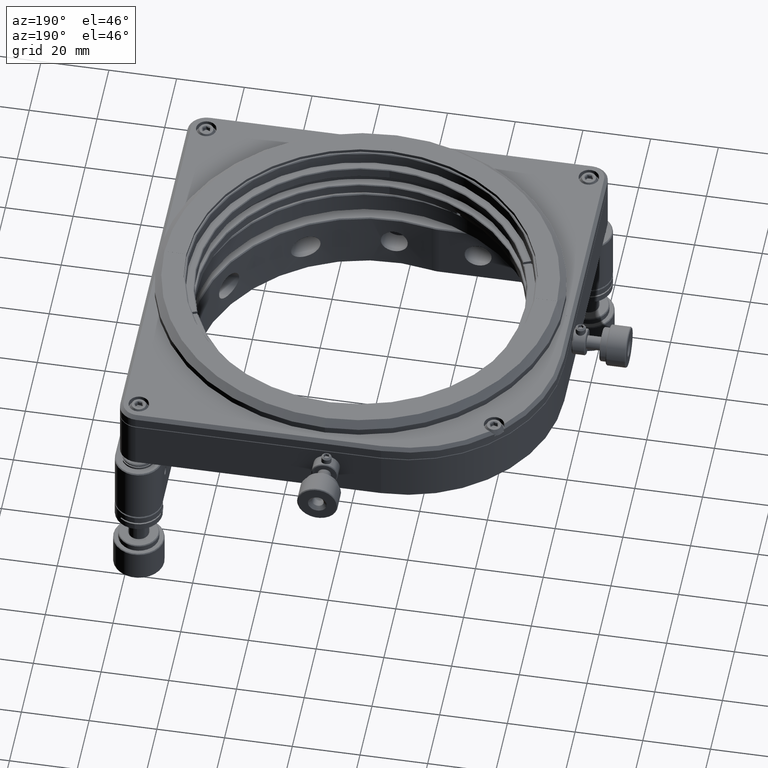
[diagram: clean part render]
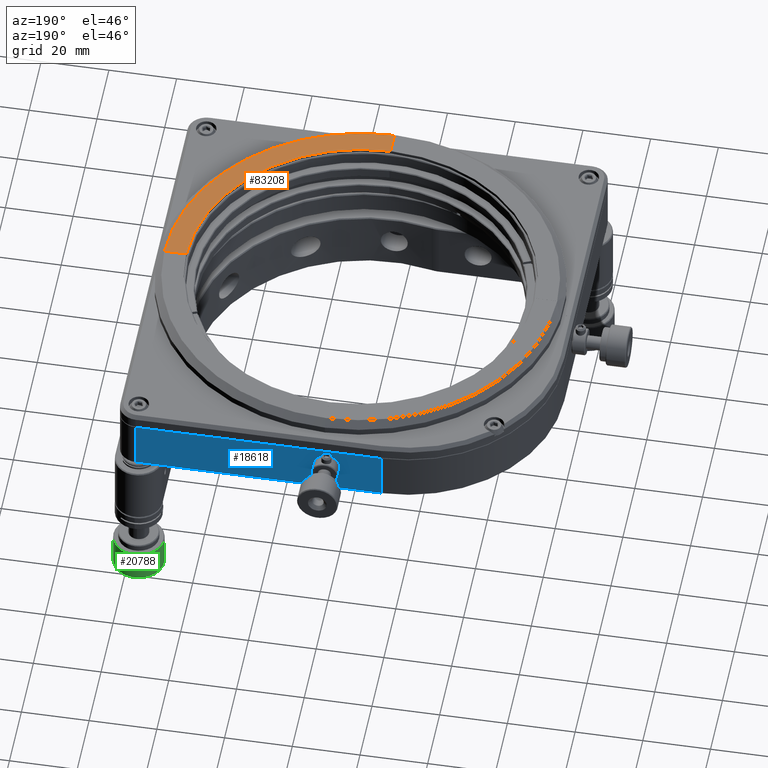
[diagram: same view with three faces highlighted in distinct colors, each labeled with its STEP entity id]
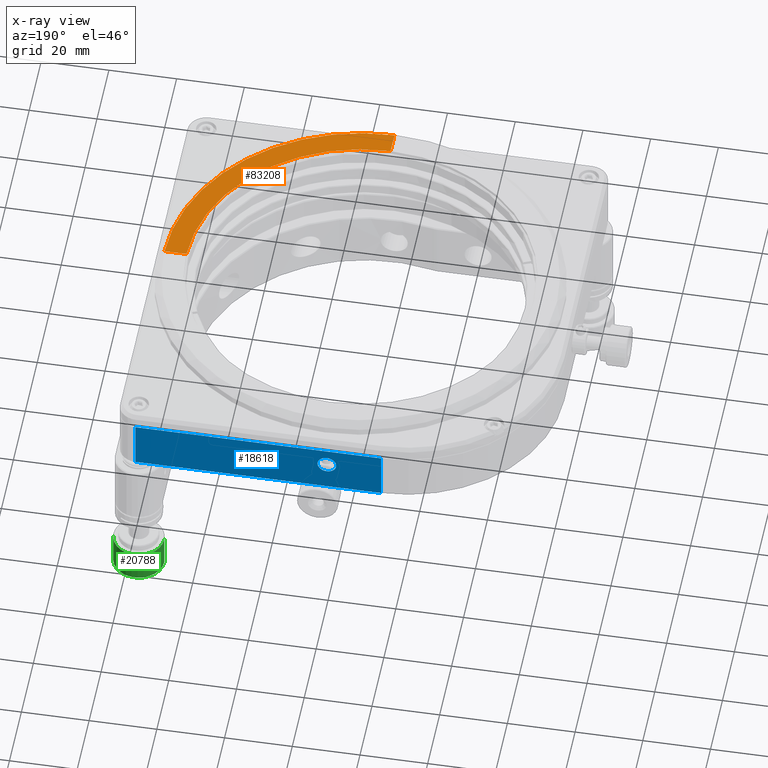
[diagram: x-ray of the same camera — body ghosted, the three highlighted faces saturated]
A machine part, auxiliary view with three faces highlighted in distinct colors.
The next image is the same camera in x-ray (body ghosted, the three faces saturated) — at least one of them is partly hidden behind the body in this view.
Their STEP definitions:

[orange] entity #83208 — the highlighted planar face has unit normal (-0, 0, 1).
#6471 = CIRCLE ( 'NONE', #28515, 57.99999999999989342 ) ;
#6886 = DIRECTION ( 'NONE',  ( -1.000000000000000000, -1.148980765197839126E-32, -4.783160795294948495E-17 ) ) ;
#13240 = AXIS2_PLACEMENT_3D ( 'NONE', #48864, #93387, #140171 ) ;
#16653 = PLANE ( 'NONE',  #132088 ) ;
#19648 = DIRECTION ( 'NONE',  ( -4.783160795294948495E-17, 2.402137026896643349E-16, 1.000000000000000000 ) ) ;
#20599 = VERTEX_POINT ( 'NONE', #143427 ) ;
#27488 = EDGE_CURVE ( 'NONE', #91242, #51318, #92363, .T. ) ;
#27859 = DIRECTION ( 'NONE',  ( 0.000000000000000000, 1.000000000000000000, -2.392722035830082916E-16 ) ) ;
#28515 = AXIS2_PLACEMENT_3D ( 'NONE', #107712, #144478, #27859 ) ;
#29666 = FACE_OUTER_BOUND ( 'NONE', #91139, .T. ) ;
#35536 = EDGE_CURVE ( 'NONE', #20599, #141187, #138830, .T. ) ;
#47629 = CARTESIAN_POINT ( 'NONE',  ( 52.71106363106245851, -1.734867508748109355, 35.49999999999997868 ) ) ;
#48864 = CARTESIAN_POINT ( 'NONE',  ( 1.211670430753839289, -1.484867508748128007, 35.49999999999997868 ) ) ;
#51318 = VERTEX_POINT ( 'NONE', #71775 ) ;
#54311 = ORIENTED_EDGE ( 'NONE', *, *, #107971, .F. ) ;
#57009 = EDGE_CURVE ( 'NONE', #141187, #91242, #101363, .T. ) ;
#64975 = CARTESIAN_POINT ( 'NONE',  ( 1.211670430753839289, -1.484867508748128007, 35.49999999999997868 ) ) ;
#68820 = ORIENTED_EDGE ( 'NONE', *, *, #57009, .T. ) ;
#71775 = CARTESIAN_POINT ( 'NONE',  ( 1.461670430754042682, -59.48432871314198422, 35.49999999999999289 ) ) ;
#82393 = CARTESIAN_POINT ( 'NONE',  ( 1.461670430754030026, -1.484867508748128007, 35.49999999999997868 ) ) ;
#83208 = ADVANCED_FACE ( 'NONE', ( #29666 ), #16653, .T. ) ;
#87367 = CARTESIAN_POINT ( 'NONE',  ( 1.461670430754025807, -52.98426070905674834, 35.49999999999999289 ) ) ;
#89102 = VECTOR ( 'NONE', #151426, 1000.000000000000000 ) ;
#91139 = EDGE_LOOP ( 'NONE', ( #94780, #68820, #93009, #54311 ) ) ;
#91242 = VERTEX_POINT ( 'NONE', #87367 ) ;
#92363 = LINE ( 'NONE', #82393, #89102 ) ;
#93009 = ORIENTED_EDGE ( 'NONE', *, *, #27488, .T. ) ;
#93387 = DIRECTION ( 'NONE',  ( 4.783160795294948495E-17, -2.402137026896644828E-16, -1.000000000000000000 ) ) ;
#94780 = ORIENTED_EDGE ( 'NONE', *, *, #35536, .T. ) ;
#101363 = CIRCLE ( 'NONE', #13240, 51.49999999999994316 ) ;
#107712 = CARTESIAN_POINT ( 'NONE',  ( 1.211670430753839289, -1.484867508748130893, 35.49999999999997868 ) ) ;
#107971 = EDGE_CURVE ( 'NONE', #20599, #51318, #6471, .T. ) ;
#111769 = DIRECTION ( 'NONE',  ( 0.000000000000000000, -1.000000000000000000, 2.402137026896643349E-16 ) ) ;
#132088 = AXIS2_PLACEMENT_3D ( 'NONE', #64975, #19648, #111769 ) ;
#135787 = CARTESIAN_POINT ( 'NONE',  ( 1.211670430753839289, -1.734867508748112463, 35.49999999999997868 ) ) ;
#138830 = LINE ( 'NONE', #135787, #141789 ) ;
#140171 = DIRECTION ( 'NONE',  ( 0.000000000000000000, 1.000000000000000000, -2.694716079187275904E-16 ) ) ;
#141187 = VERTEX_POINT ( 'NONE', #47629 ) ;
#141789 = VECTOR ( 'NONE', #6886, 1000.000000000000000 ) ;
#143427 = CARTESIAN_POINT ( 'NONE',  ( 59.21113163514768729, -1.734867508748112463, 35.49999999999997868 ) ) ;
#144478 = DIRECTION ( 'NONE',  ( 5.782411586589364788E-17, -2.312964634635744436E-16, -1.000000000000000000 ) ) ;
#151426 = DIRECTION ( 'NONE',  ( 0.000000000000000000, -1.000000000000000000, 2.402137026896643349E-16 ) ) ;

[blue] entity #18618 — the highlighted planar face has unit normal (0, -1, -0).
#1034 = LINE ( 'NONE', #84688, #46372 ) ;
#3033 = VERTEX_POINT ( 'NONE', #38266 ) ;
#5101 = DIRECTION ( 'NONE',  ( -1.000000000000000000, -2.775557561562891351E-17, -0.000000000000000000 ) ) ;
#13057 = LINE ( 'NONE', #59852, #120192 ) ;
#15587 = DIRECTION ( 'NONE',  ( 3.760505654914396745E-17, 1.803624211640625410E-17, -1.000000000000000000 ) ) ;
#15810 = EDGE_CURVE ( 'NONE', #82692, #3033, #94532, .T. ) ;
#16829 = CARTESIAN_POINT ( 'NONE',  ( 2.749999999999046096, 61.99999999999933920, 21.74999999999997868 ) ) ;
#18618 = ADVANCED_FACE ( 'NONE', ( #150073, #127833 ), #91787, .F. ) ;
#19263 = CARTESIAN_POINT ( 'NONE',  ( -9.536732955797350236E-13, 61.99999999999934630, 21.74999999999997868 ) ) ;
#23035 = DIRECTION ( 'NONE',  ( 5.006062818837047395E-34, -1.803624211640625718E-17, 1.000000000000000000 ) ) ;
#28299 = ORIENTED_EDGE ( 'NONE', *, *, #137747, .F. ) ;
#28371 = AXIS2_PLACEMENT_3D ( 'NONE', #31436, #78282, #68294 ) ;
#28724 = AXIS2_PLACEMENT_3D ( 'NONE', #19263, #65336, #145894 ) ;
#31436 = CARTESIAN_POINT ( 'NONE',  ( -9.536732955797350236E-13, 61.99999999999934630, 21.74999999999997868 ) ) ;
#36787 = VERTEX_POINT ( 'NONE', #45338 ) ;
#36875 = ORIENTED_EDGE ( 'NONE', *, *, #99311, .F. ) ;
#37386 = ORIENTED_EDGE ( 'NONE', *, *, #37809, .T. ) ;
#37809 = EDGE_CURVE ( 'NONE', #113630, #100977, #81218, .T. ) ;
#38266 = CARTESIAN_POINT ( 'NONE',  ( -2.750000000000953460, 61.99999999999935341, 21.74999999999997868 ) ) ;
#38984 = EDGE_LOOP ( 'NONE', ( #37386, #78396, #36875, #116890 ) ) ;
#40274 = AXIS2_PLACEMENT_3D ( 'NONE', #139329, #101761, #90256 ) ;
#40874 = CIRCLE ( 'NONE', #28724, 2.750000000000000000 ) ;
#45338 = CARTESIAN_POINT ( 'NONE',  ( 56.49999999999882760, 61.99999999999934630, 27.24999999999998224 ) ) ;
#46372 = VECTOR ( 'NONE', #15587, 1000.000000000000000 ) ;
#47802 = VERTEX_POINT ( 'NONE', #119025 ) ;
#48597 = ORIENTED_EDGE ( 'NONE', *, *, #15810, .F. ) ;
#59852 = CARTESIAN_POINT ( 'NONE',  ( 56.49999999999882760, 61.99999999999934630, 27.49999999999999645 ) ) ;
#65336 = DIRECTION ( 'NONE',  ( 3.463725763227504442E-15, 1.000000000000000000, 1.803624211640638660E-17 ) ) ;
#68294 = DIRECTION ( 'NONE',  ( -1.000000000000000000, 2.523234146875355702E-15, 0.000000000000000000 ) ) ;
#78282 = DIRECTION ( 'NONE',  ( 3.463725763227504442E-15, 1.000000000000000000, 1.803624211640638660E-17 ) ) ;
#78396 = ORIENTED_EDGE ( 'NONE', *, *, #142989, .F. ) ;
#81218 = LINE ( 'NONE', #104230, #93935 ) ;
#82692 = VERTEX_POINT ( 'NONE', #16829 ) ;
#84263 = DIRECTION ( 'NONE',  ( -1.000000000000000000, 4.924740466757508481E-18, -4.924740466757502318E-18 ) ) ;
#84688 = CARTESIAN_POINT ( 'NONE',  ( -16.00000000000116529, 61.99999999999933209, 27.49999999999998224 ) ) ;
#90256 = DIRECTION ( 'NONE',  ( 1.000000000000000000, 2.775557561562891351E-17, 0.000000000000000000 ) ) ;
#91198 = CARTESIAN_POINT ( 'NONE',  ( 56.49999999999882760, 62.00000000000247269, 12.74999999998147260 ) ) ;
#91787 = PLANE ( 'NONE',  #40274 ) ;
#93935 = VECTOR ( 'NONE', #84263, 1000.000000000000000 ) ;
#94532 = CIRCLE ( 'NONE', #28371, 2.750000000000000000 ) ;
#98450 = EDGE_CURVE ( 'NONE', #113630, #36787, #13057, .T. ) ;
#99311 = EDGE_CURVE ( 'NONE', #36787, #47802, #121755, .T. ) ;
#100977 = VERTEX_POINT ( 'NONE', #113765 ) ;
#101761 = DIRECTION ( 'NONE',  ( 2.775557561562891351E-17, -1.000000000000000000, -1.803624211640625718E-17 ) ) ;
#104230 = CARTESIAN_POINT ( 'NONE',  ( -62.00000000000116529, 61.99999999999934630, 12.75000000000000533 ) ) ;
#113630 = VERTEX_POINT ( 'NONE', #91198 ) ;
#113765 = CARTESIAN_POINT ( 'NONE',  ( -16.00000000000116529, 61.99999999999933209, 12.75000000000000355 ) ) ;
#116890 = ORIENTED_EDGE ( 'NONE', *, *, #98450, .F. ) ;
#119025 = CARTESIAN_POINT ( 'NONE',  ( -16.00000000000116529, 61.99999999999933209, 27.24999999999998934 ) ) ;
#120192 = VECTOR ( 'NONE', #23035, 1000.000000000000000 ) ;
#121755 = LINE ( 'NONE', #144008, #149588 ) ;
#127055 = EDGE_LOOP ( 'NONE', ( #28299, #48597 ) ) ;
#127833 = FACE_BOUND ( 'NONE', #127055, .T. ) ;
#137747 = EDGE_CURVE ( 'NONE', #3033, #82692, #40874, .T. ) ;
#139329 = CARTESIAN_POINT ( 'NONE',  ( -62.00000000000116529, 61.99999999999934630, 27.49999999999999645 ) ) ;
#142989 = EDGE_CURVE ( 'NONE', #47802, #100977, #1034, .T. ) ;
#144008 = CARTESIAN_POINT ( 'NONE',  ( -62.00000000000116529, 61.99999999999934630, 27.24999999999998224 ) ) ;
#145894 = DIRECTION ( 'NONE',  ( -1.000000000000000000, 2.523234146875355702E-15, 0.000000000000000000 ) ) ;
#149588 = VECTOR ( 'NONE', #5101, 1000.000000000000000 ) ;
#150073 = FACE_OUTER_BOUND ( 'NONE', #38984, .T. ) ;

[green] entity #20788 — the highlighted cylindrical surface (edge-blend (fillet) strip) has radius 7.5 mm, axis along (-0, -0, -1).
#606 = DIRECTION ( 'NONE',  ( -0.000000000000000000, -0.000000000000000000, -1.000000000000000000 ) ) ;
#1476 = DIRECTION ( 'NONE',  ( -0.000000000000000000, -0.000000000000000000, -1.000000000000000000 ) ) ;
#1499 = DIRECTION ( 'NONE',  ( -0.000000000000000000, -0.000000000000000000, -1.000000000000000000 ) ) ;
#3970 = AXIS2_PLACEMENT_3D ( 'NONE', #93477, #606, #25175 ) ;
#20788 = ADVANCED_FACE ( 'NONE', ( #35281 ), #130405, .T. ) ;
#21459 = CARTESIAN_POINT ( 'NONE',  ( 64.00000000000002842, 56.50000000000001421, -23.83342712474618708 ) ) ;
#25175 = DIRECTION ( 'NONE',  ( -1.000000000000000000, 0.000000000000000000, 0.000000000000000000 ) ) ;
#26810 = DIRECTION ( 'NONE',  ( -1.000000000000000000, 0.000000000000000000, 0.000000000000000000 ) ) ;
#35053 = VECTOR ( 'NONE', #142788, 1000.000000000000000 ) ;
#35281 = FACE_OUTER_BOUND ( 'NONE', #94411, .T. ) ;
#35946 = AXIS2_PLACEMENT_3D ( 'NONE', #45715, #55673, #78744 ) ;
#36027 = CARTESIAN_POINT ( 'NONE',  ( 56.50000000000002132, 56.50000000000001421, -23.83342712474618708 ) ) ;
#44019 = ORIENTED_EDGE ( 'NONE', *, *, #112184, .T. ) ;
#45715 = CARTESIAN_POINT ( 'NONE',  ( 56.50000000000002132, 56.50000000000001421, -33.58342712474620129 ) ) ;
#47680 = EDGE_CURVE ( 'NONE', #148663, #104383, #62240, .T. ) ;
#50632 = CIRCLE ( 'NONE', #35946, 7.500000000000000000 ) ;
#55673 = DIRECTION ( 'NONE',  ( 0.000000000000000000, 0.000000000000000000, 1.000000000000000000 ) ) ;
#57939 = VERTEX_POINT ( 'NONE', #67929 ) ;
#60305 = CIRCLE ( 'NONE', #3970, 7.500000000000000000 ) ;
#62240 = LINE ( 'NONE', #120532, #35053 ) ;
#64870 = EDGE_CURVE ( 'NONE', #57939, #115908, #106617, .T. ) ;
#67362 = ORIENTED_EDGE ( 'NONE', *, *, #106828, .T. ) ;
#67929 = CARTESIAN_POINT ( 'NONE',  ( 64.00000000000002842, 56.50000000000001421, -24.08342712474618708 ) ) ;
#78744 = DIRECTION ( 'NONE',  ( -1.000000000000000000, 0.000000000000000000, 0.000000000000000000 ) ) ;
#88015 = ORIENTED_EDGE ( 'NONE', *, *, #64870, .T. ) ;
#93477 = CARTESIAN_POINT ( 'NONE',  ( 56.50000000000002132, 56.50000000000001421, -24.08342712474618708 ) ) ;
#94411 = EDGE_LOOP ( 'NONE', ( #67362, #88015, #44019, #101852 ) ) ;
#97479 = CARTESIAN_POINT ( 'NONE',  ( 64.00000000000002842, 56.50000000000001421, -33.58342712474620129 ) ) ;
#101852 = ORIENTED_EDGE ( 'NONE', *, *, #47680, .F. ) ;
#104383 = VERTEX_POINT ( 'NONE', #144205 ) ;
#104773 = VECTOR ( 'NONE', #1476, 1000.000000000000000 ) ;
#106617 = LINE ( 'NONE', #21459, #104773 ) ;
#106828 = EDGE_CURVE ( 'NONE', #148663, #57939, #60305, .T. ) ;
#112184 = EDGE_CURVE ( 'NONE', #115908, #104383, #50632, .T. ) ;
#113845 = AXIS2_PLACEMENT_3D ( 'NONE', #36027, #1499, #26810 ) ;
#115908 = VERTEX_POINT ( 'NONE', #97479 ) ;
#120532 = CARTESIAN_POINT ( 'NONE',  ( 49.00000000000002132, 56.50000000000001421, -23.83342712474618708 ) ) ;
#129411 = CARTESIAN_POINT ( 'NONE',  ( 49.00000000000002132, 56.50000000000001421, -24.08342712474618708 ) ) ;
#130405 = CYLINDRICAL_SURFACE ( 'NONE', #113845, 7.500000000000000000 ) ;
#142788 = DIRECTION ( 'NONE',  ( -0.000000000000000000, -0.000000000000000000, -1.000000000000000000 ) ) ;
#144205 = CARTESIAN_POINT ( 'NONE',  ( 49.00000000000002132, 56.50000000000001421, -33.58342712474620129 ) ) ;
#148663 = VERTEX_POINT ( 'NONE', #129411 ) ;